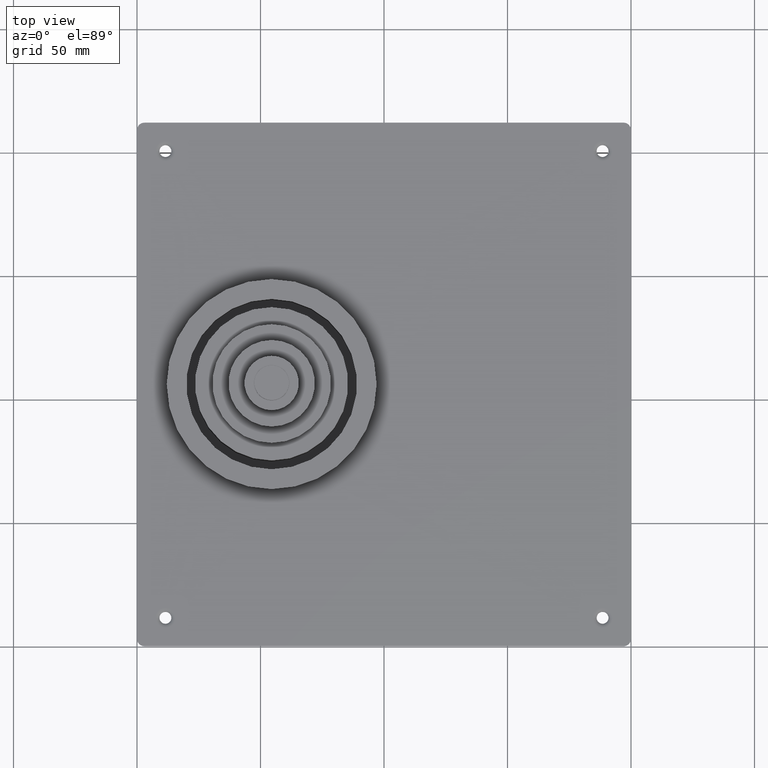
[diagram: clean part render]
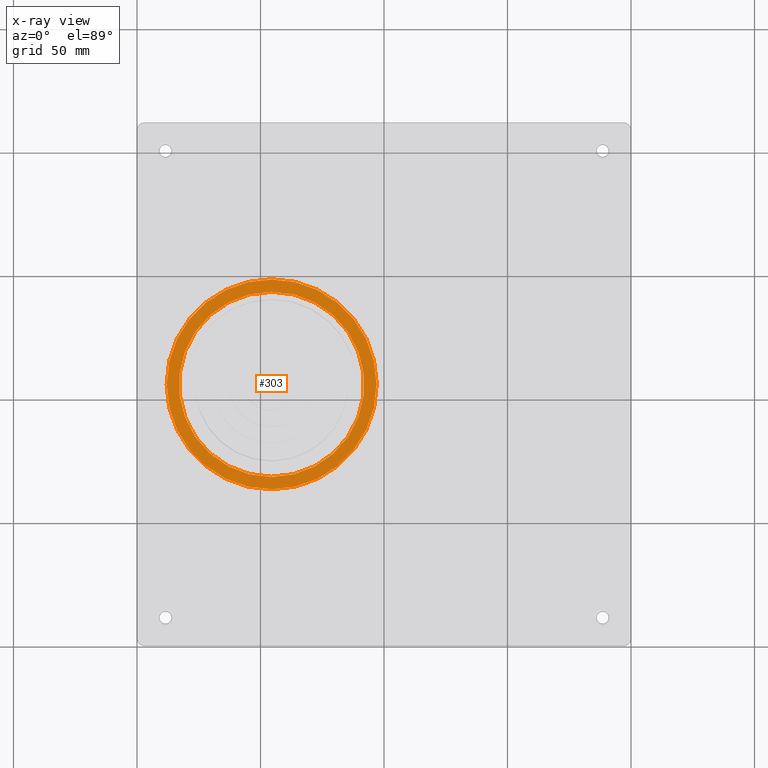
[diagram: x-ray — body ghosted, one internal face saturated and labeled with its STEP entity id]
A machine part, top view, then the same camera in x-ray: the body is ghosted and one INTERNAL B-rep face — a face not visible from any outside direction — is saturated and labeled: STEP entity #303.
In plain terms, the highlighted planar face has unit normal (0, 0, -1).
Its self-contained STEP definition (entity closure, byte-faithful):
#303=ADVANCED_FACE('',(#598,#599),#600,.T.);
#598=FACE_OUTER_BOUND('',#884,.T.);
#599=FACE_BOUND('',#885,.T.);
#600=PLANE('',#886);
#884=EDGE_LOOP('',(#1543,#1544));
#885=EDGE_LOOP('',(#1545,#1546));
#886=AXIS2_PLACEMENT_3D('',#1547,#1548,#1549);
#1543=ORIENTED_EDGE('',*,*,#1785,.F.);
#1544=ORIENTED_EDGE('',*,*,#1875,.F.);
#1545=ORIENTED_EDGE('',*,*,#1792,.T.);
#1546=ORIENTED_EDGE('',*,*,#1873,.T.);
#1547=CARTESIAN_POINT('',(54.5,146.0,16.5));
#1548=DIRECTION('',(0.0,-0.0,-1.0));
#1549=DIRECTION('',(0.0,-1.0,0.0));
#1785=EDGE_CURVE('',#2134,#2137,#2138,.T.);
#1792=EDGE_CURVE('',#2144,#2148,#2150,.T.);
#1873=EDGE_CURVE('',#2148,#2144,#2265,.T.);
#1875=EDGE_CURVE('',#2137,#2134,#2267,.T.);
#2134=VERTEX_POINT('',#2568);
#2137=VERTEX_POINT('',#2572);
#2138=CIRCLE('',#2573,42.5);
#2144=VERTEX_POINT('',#2580);
#2148=VERTEX_POINT('',#2585);
#2150=CIRCLE('',#2588,37.5);
#2265=CIRCLE('',#2717,37.5);
#2267=CIRCLE('',#2719,42.5);
#2568=CARTESIAN_POINT('',(54.5,148.5,16.5));
#2572=CARTESIAN_POINT('',(54.5,63.5,16.5));
#2573=AXIS2_PLACEMENT_3D('',#2997,#2998,#2999);
#2580=CARTESIAN_POINT('',(54.5,143.5,16.5));
#2585=CARTESIAN_POINT('',(54.5,68.5,16.5));
#2588=AXIS2_PLACEMENT_3D('',#3009,#3010,#3011);
#2717=AXIS2_PLACEMENT_3D('',#3146,#3147,#3148);
#2719=AXIS2_PLACEMENT_3D('',#3149,#3150,#3151);
#2997=CARTESIAN_POINT('',(54.5,106.0,16.5));
#2998=DIRECTION('',(0.0,-0.0,1.0));
#2999=DIRECTION('',(0.0,1.0,0.0));
#3009=CARTESIAN_POINT('',(54.5,106.0,16.5));
#3010=DIRECTION('',(0.0,-0.0,1.0));
#3011=DIRECTION('',(0.0,1.0,0.0));
#3146=CARTESIAN_POINT('',(54.5,106.0,16.5));
#3147=DIRECTION('',(0.0,-0.0,1.0));
#3148=DIRECTION('',(0.0,1.0,0.0));
#3149=CARTESIAN_POINT('',(54.5,106.0,16.5));
#3150=DIRECTION('',(0.0,-0.0,1.0));
#3151=DIRECTION('',(0.0,1.0,0.0));